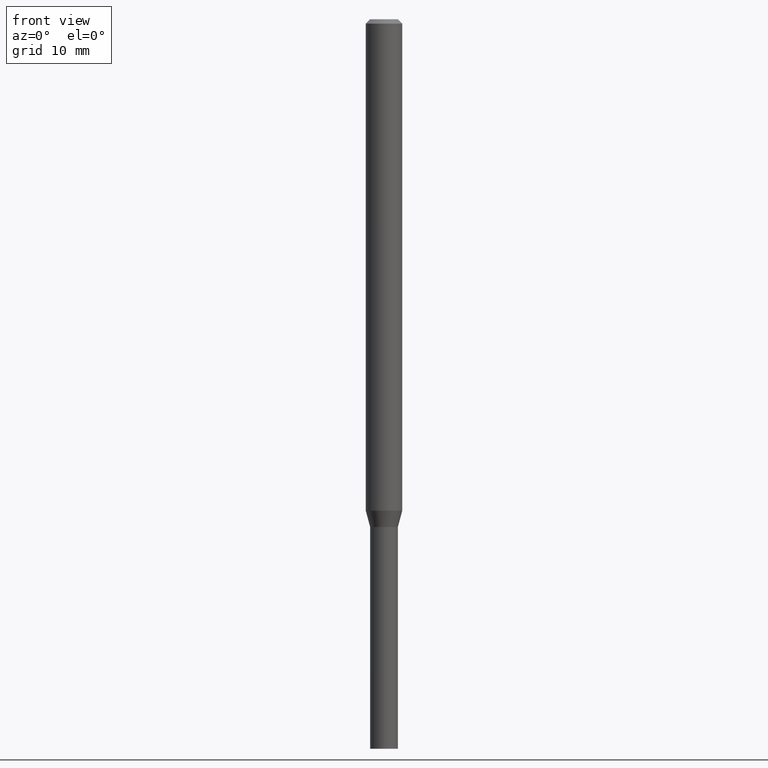
[diagram: clean part render]
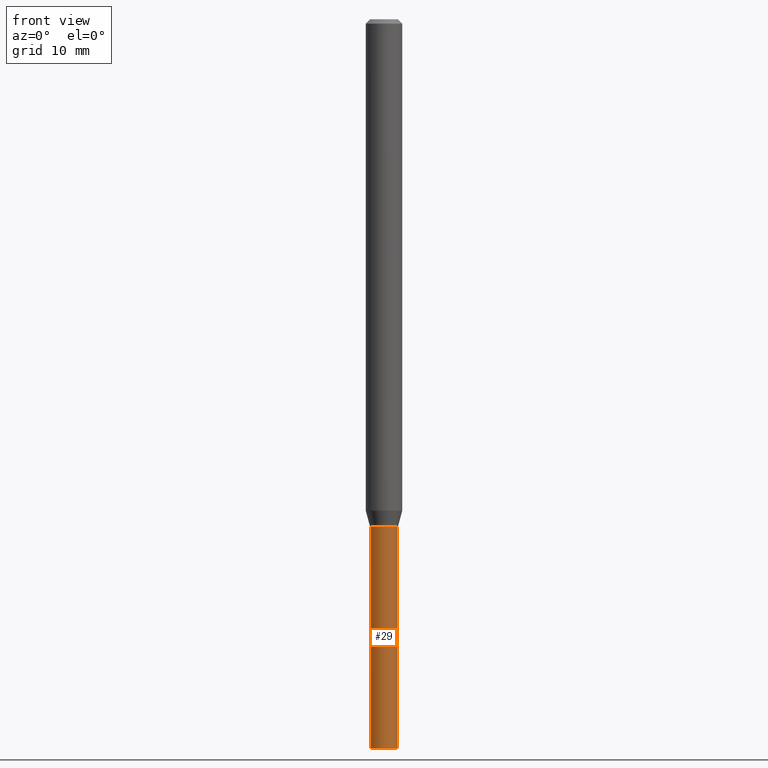
[diagram: same view with one face highlighted and labeled with its STEP entity id]
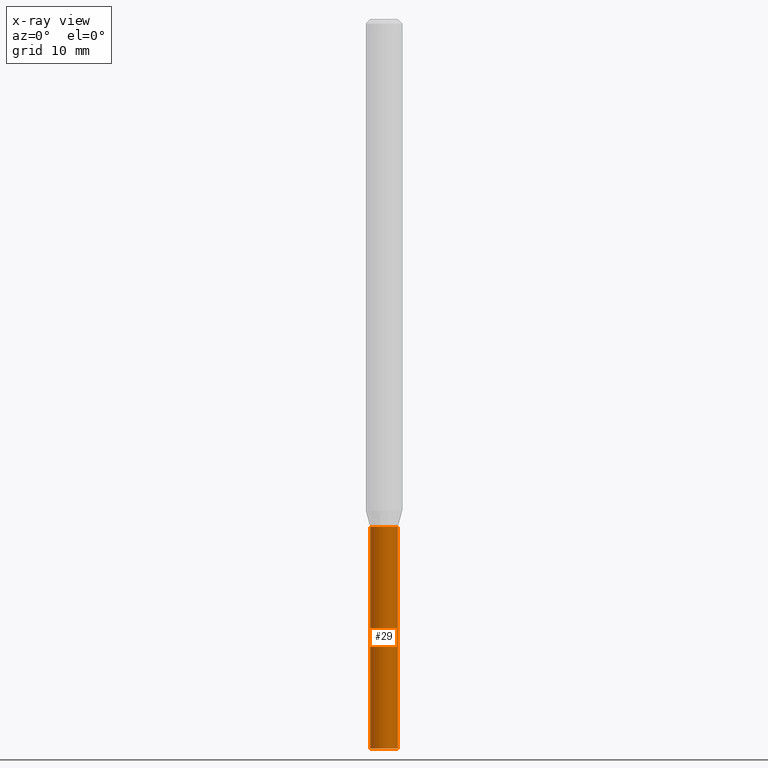
[diagram: x-ray of the same camera — body ghosted, the highlighted face saturated]
A machine part, front view. The second image highlights one B-rep face of the part: STEP entity #29.
The next image is the same camera in x-ray: the body ghosted, the highlighted face saturated — about 0% of this face is hidden behind the body in this view.
In plain terms, the highlighted cylindrical surface (edge-blend (fillet) strip) has radius 1.2065 mm, axis along (-0, 0, 1).
Its self-contained STEP definition (entity closure, byte-faithful):
#27 = DIRECTION ( 'NONE',  ( 1.000000000000000000, -6.982962677686267499E-15, 4.876176775795935793E-29 ) ) ;
#28 = AXIS2_PLACEMENT_3D ( 'NONE', #302, #73, #189 ) ;
#29 = ADVANCED_FACE ( 'NONE', ( #252 ), #211, .T. ) ;
#47 = CARTESIAN_POINT ( 'NONE',  ( -0.04749999999999999362, -7.064432638861422672E-15, -2.500000000000000000 ) ) ;
#55 = EDGE_CURVE ( 'NONE', #342, #295, #94, .T. ) ;
#60 = CARTESIAN_POINT ( 'NONE',  ( 6.113672015462842613E-29, -8.728703347107864943E-15, -2.500000000000000000 ) ) ;
#73 = DIRECTION ( 'NONE',  ( -2.445468806185136597E-29, 3.491481338843145583E-15, 1.000000000000000000 ) ) ;
#80 = VERTEX_POINT ( 'NONE', #282 ) ;
#82 = ORIENTED_EDGE ( 'NONE', *, *, #284, .F. ) ;
#89 = ORIENTED_EDGE ( 'NONE', *, *, #297, .F. ) ;
#90 = ORIENTED_EDGE ( 'NONE', *, *, #55, .T. ) ;
#94 = CIRCLE ( 'NONE', #427, 0.04749999999999999362 ) ;
#95 = CIRCLE ( 'NONE', #28, 0.04749999999999999362 ) ;
#112 = VERTEX_POINT ( 'NONE', #170 ) ;
#114 = CARTESIAN_POINT ( 'NONE',  ( -0.04749999999999999362, 3.375077994860475429E-16, -2.336494167871079910E-30 ) ) ;
#139 = VECTOR ( 'NONE', #292, 39.37007874015748143 ) ;
#150 = LINE ( 'NONE', #306, #333 ) ;
#170 = CARTESIAN_POINT ( 'NONE',  ( -0.04749999999999999362, -7.064432638861422672E-15, -1.740000000000000213 ) ) ;
#186 = LINE ( 'NONE', #114, #139 ) ;
#189 = DIRECTION ( 'NONE',  ( 1.000000000000000000, -6.982962677686261977E-15, 0.000000000000000000 ) ) ;
#211 = CYLINDRICAL_SURFACE ( 'NONE', #241, 0.04749999999999999362 ) ;
#238 = ORIENTED_EDGE ( 'NONE', *, *, #442, .T. ) ;
#241 = AXIS2_PLACEMENT_3D ( 'NONE', #323, #353, #27 ) ;
#252 = FACE_OUTER_BOUND ( 'NONE', #316, .T. ) ;
#282 = CARTESIAN_POINT ( 'NONE',  ( 0.04749999999999999362, -6.406868256777172111E-15, -1.740000000000000213 ) ) ;
#284 = EDGE_CURVE ( 'NONE', #342, #112, #186, .T. ) ;
#292 = DIRECTION ( 'NONE',  ( -2.445468806185136877E-29, 3.491481338843145188E-15, 1.000000000000000000 ) ) ;
#295 = VERTEX_POINT ( 'NONE', #401 ) ;
#297 = EDGE_CURVE ( 'NONE', #112, #80, #95, .T. ) ;
#302 = CARTESIAN_POINT ( 'NONE',  ( 4.255115722762138620E-29, -6.075177529587074600E-15, -1.740000000000000213 ) ) ;
#306 = CARTESIAN_POINT ( 'NONE',  ( 0.04749999999999999362, -3.316907271900976589E-16, 2.316183968503069081E-30 ) ) ;
#316 = EDGE_LOOP ( 'NONE', ( #82, #90, #238, #89 ) ) ;
#323 = CARTESIAN_POINT ( 'NONE',  ( 0.000000000000000000, 0.000000000000000000, 0.000000000000000000 ) ) ;
#333 = VECTOR ( 'NONE', #441, 39.37007874015748143 ) ;
#342 = VERTEX_POINT ( 'NONE', #47 ) ;
#353 = DIRECTION ( 'NONE',  ( -2.445468806185136597E-29, 3.491481338843145583E-15, 1.000000000000000000 ) ) ;
#401 = CARTESIAN_POINT ( 'NONE',  ( 0.04749999999999999362, -9.060394074297963242E-15, -2.500000000000000000 ) ) ;
#418 = DIRECTION ( 'NONE',  ( -2.445468806185136597E-29, 3.491481338843145583E-15, 1.000000000000000000 ) ) ;
#427 = AXIS2_PLACEMENT_3D ( 'NONE', #60, #418, #459 ) ;
#441 = DIRECTION ( 'NONE',  ( -2.445468806185136877E-29, 3.491481338843145188E-15, 1.000000000000000000 ) ) ;
#442 = EDGE_CURVE ( 'NONE', #295, #80, #150, .T. ) ;
#459 = DIRECTION ( 'NONE',  ( 1.000000000000000000, -6.982962677686283277E-15, 0.000000000000000000 ) ) ;